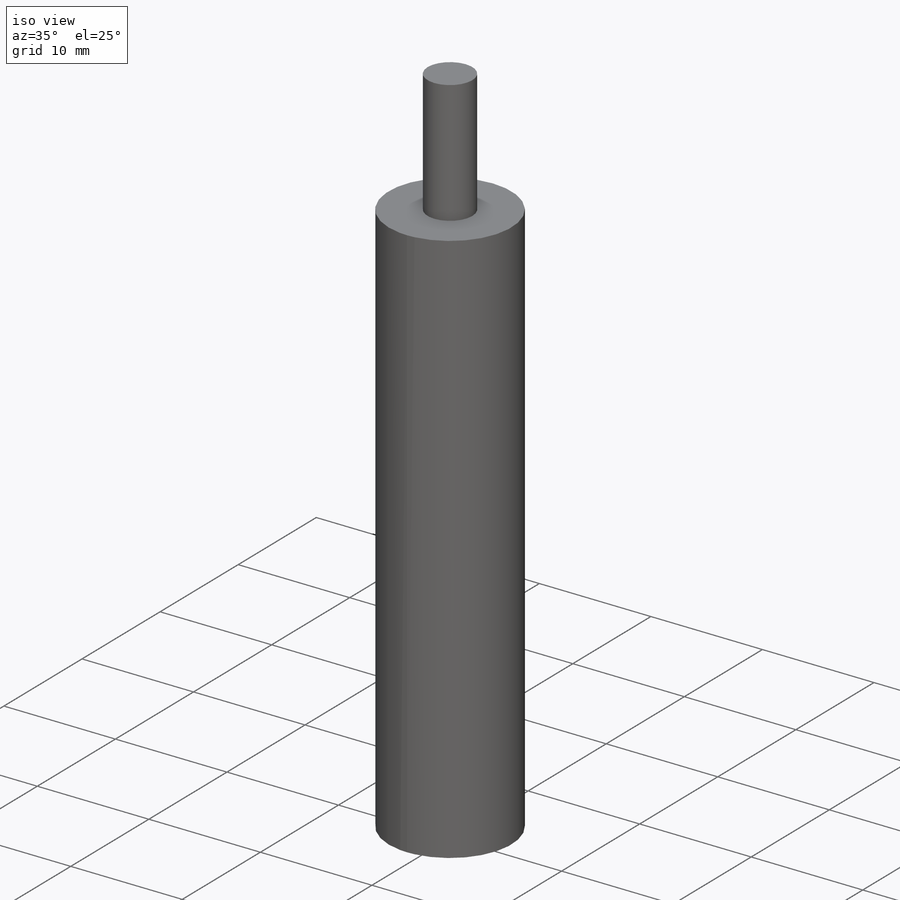
[diagram: iso view]
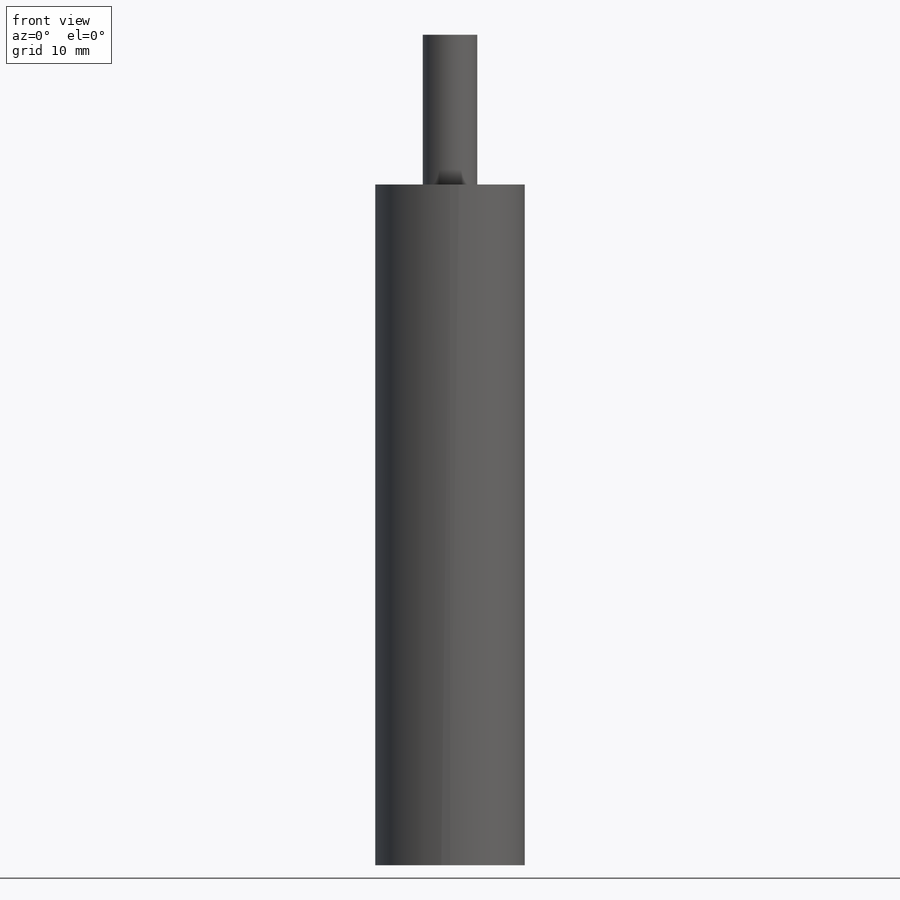
[diagram: front view]
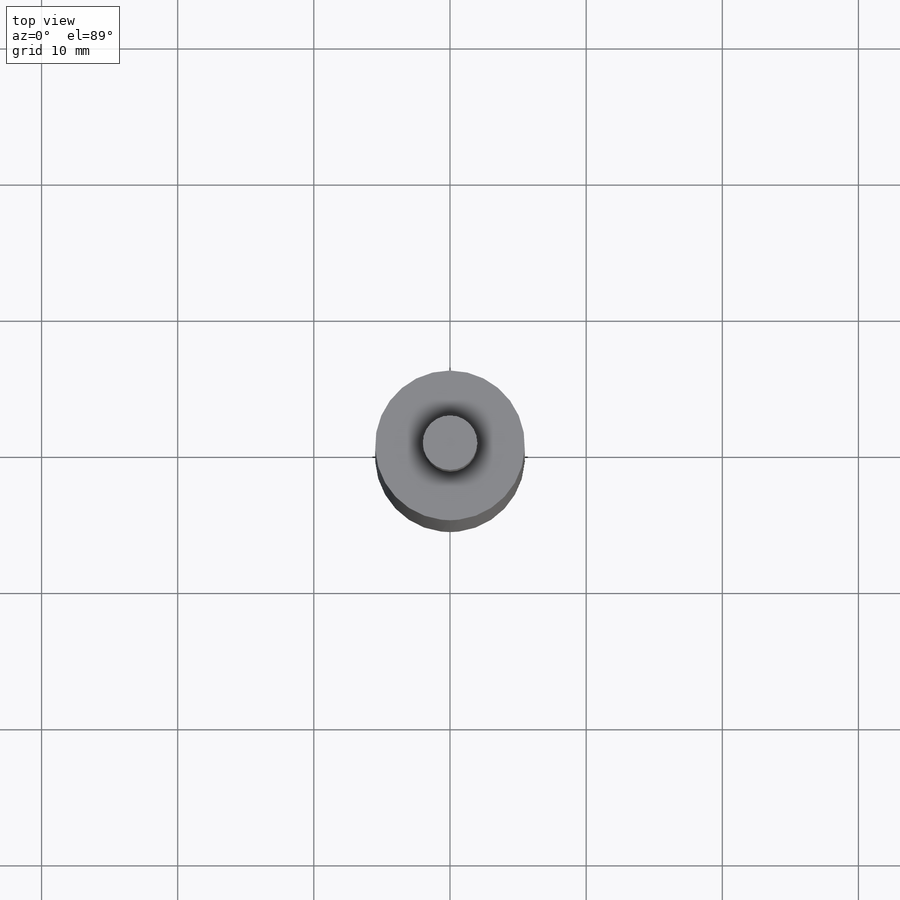
[diagram: top view]
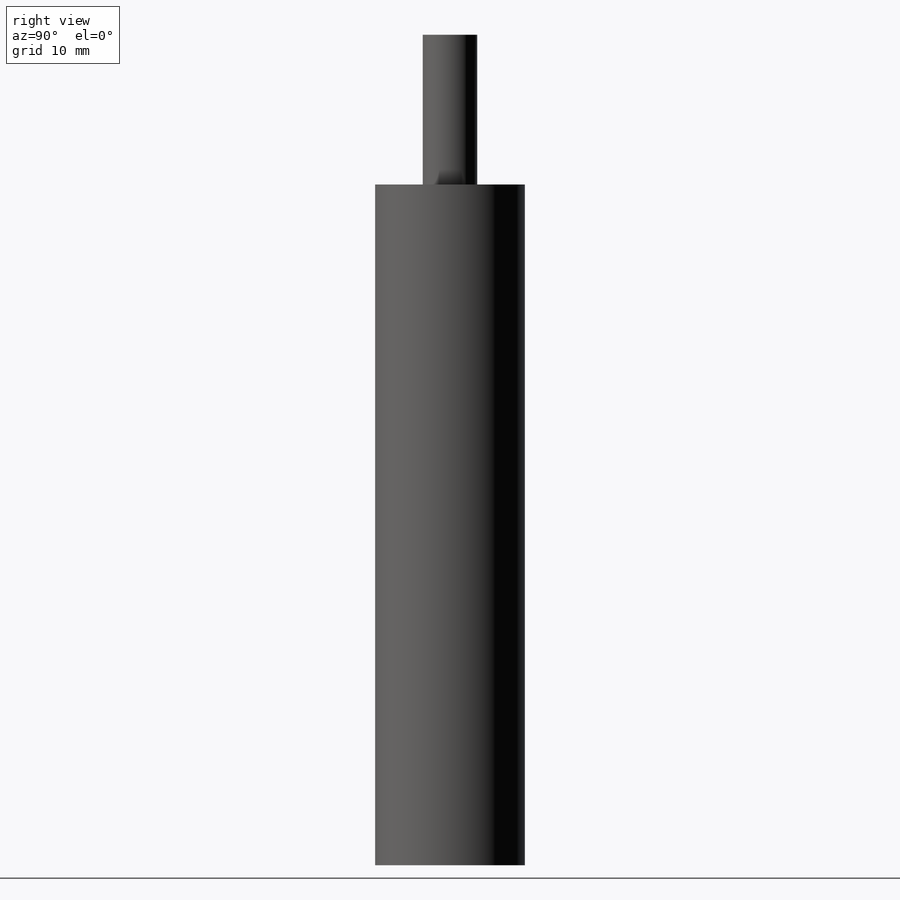
[diagram: right view]
SOLIDWORKS PART (.sldprt)
format: sldprt  version: not decoded by parser v0  size: 114,688 bytes
history: native  units: mm
features: plane x3, sketch x3, extrude x2, material x1, cut_extrude x1 (+8 scaffold rows collapsed)
feature tree (18):
  scaffold x8  (default folders/planes/origin — collapsed)
  material  "Alliage 1060"
  plane  "Plan de face"
  plane  "Plan de dessus"
  plane  "Plan de droite"
  sketch  "Esquisse1"  dims[D1=11.0mm]
  extrude  "Boss.-Extru.1"  Depth=50mm
  sketch  "Esquisse2"  dims[D1=4.0mm]
  extrude  "Boss.-Extru.2"  Depth=11mm
  sketch  "Esquisse3"  dims[D1=4.0mm]
  cut_extrude  "Enlèv. mat.-Extru.1"  Depth=11mm
decode coverage: 6 of 6 modeling features carry decoded parameters
note: suppression state not decoded; provenance and decode notes live in map.json
